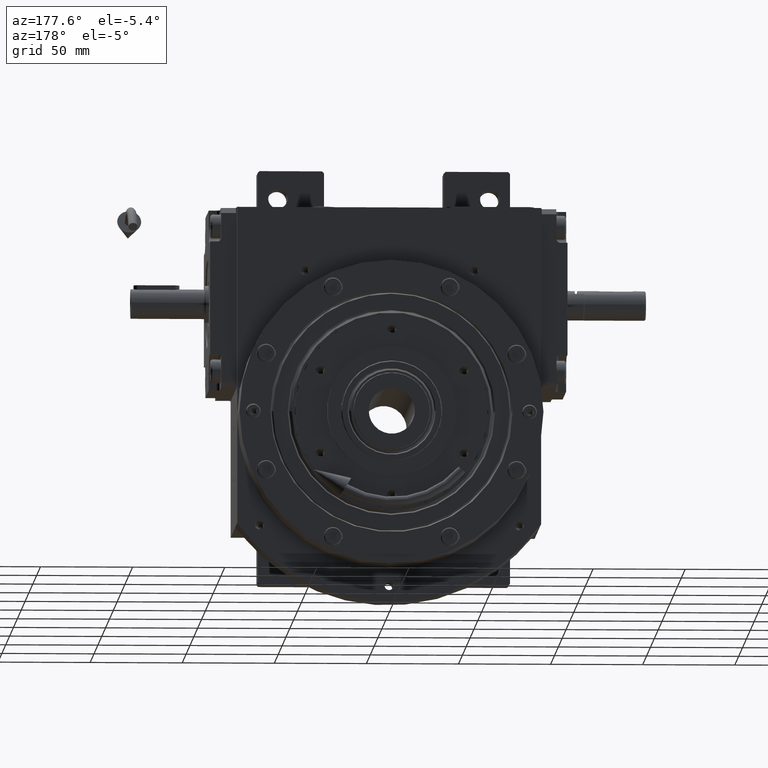
[diagram: clean part render]
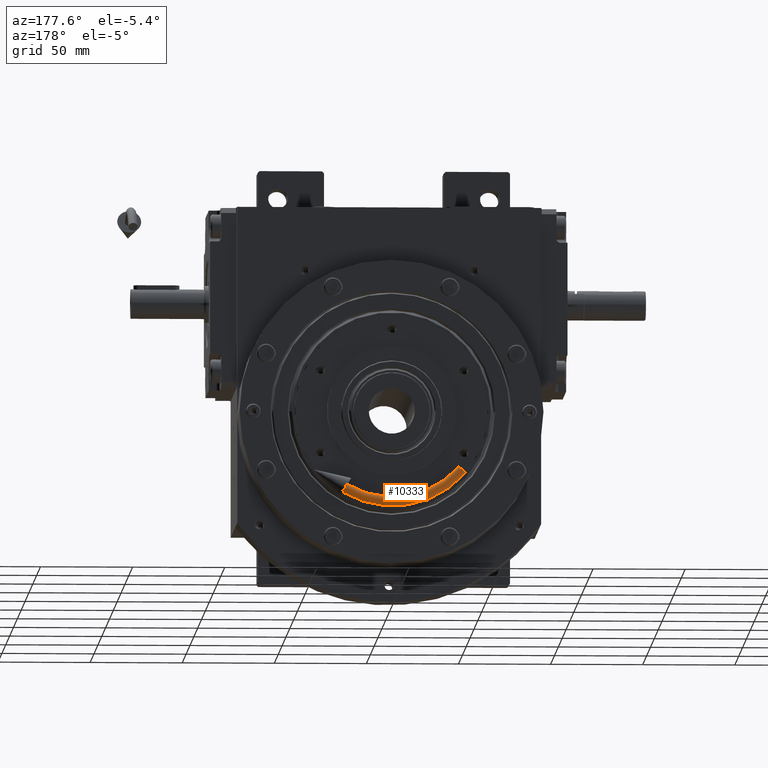
[diagram: same view with one face highlighted and labeled with its STEP entity id]
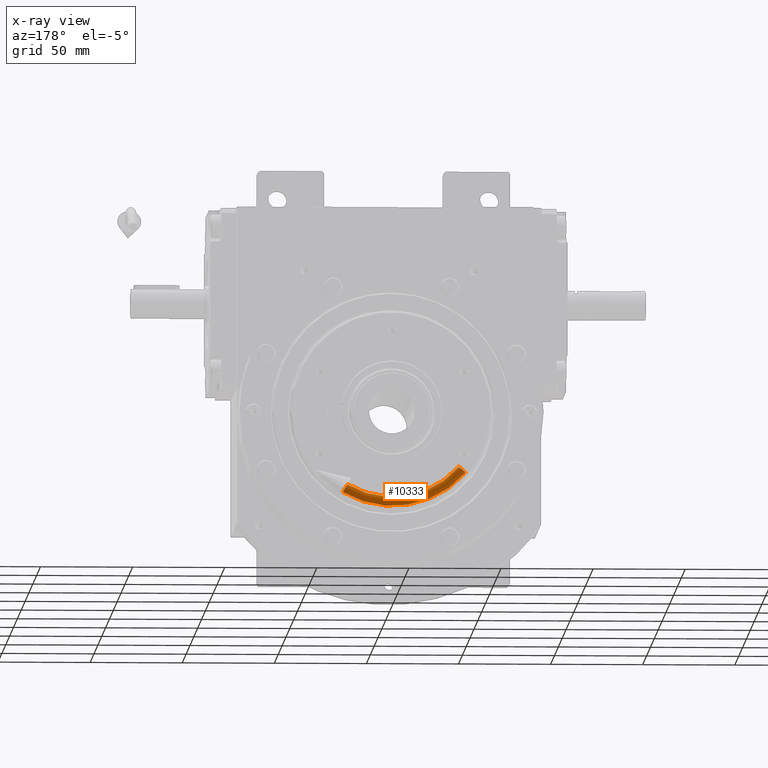
[diagram: x-ray of the same camera — body ghosted, the highlighted face saturated]
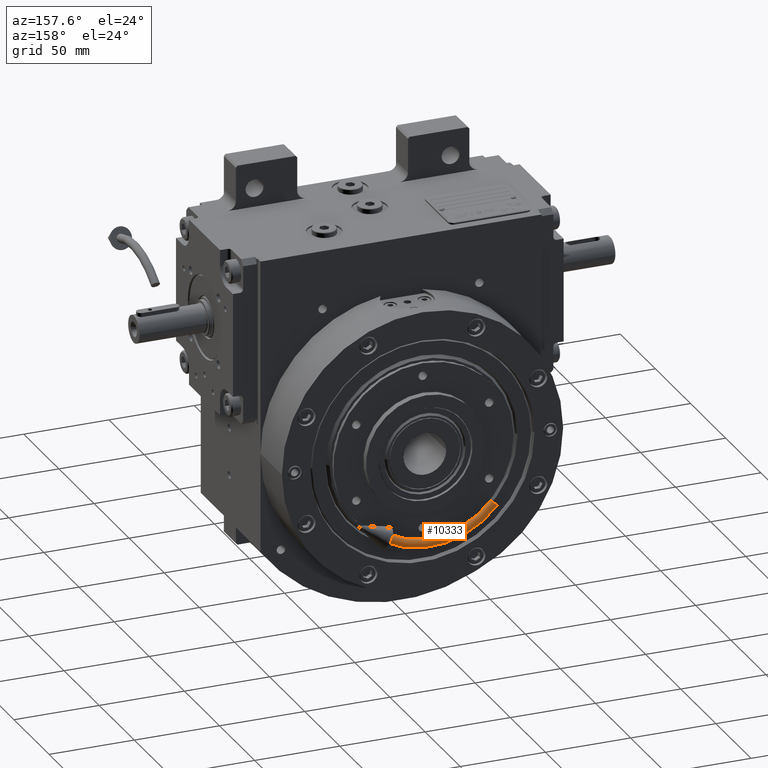
[diagram: same view with one face highlighted and labeled with its STEP entity id]
A machine part, auxiliary view. The second image highlights one B-rep face of the part: STEP entity #10333.
The next image is the same camera in x-ray: the body ghosted, the highlighted face saturated — about 0% of this face is hidden behind the body in this view.
A second angle (auxiliary view) of the same face is appended — the face is thin or edge-on in the first view.
In plain terms, the highlighted toroidal blend (fillet) surface has major radius 50 mm and minor (blend) radius 2.5 mm.
Its self-contained STEP definition (entity closure, byte-faithful):
#598 = ORIENTED_EDGE ( 'NONE', *, *, #51169, .F. ) ;
#4055 = CARTESIAN_POINT ( 'NONE',  ( -49.99999999999962341, 0.000000000000000000, -1.387778780781445676E-14 ) ) ;
#7012 = DIRECTION ( 'NONE',  ( 1.000000000000000000, -2.041375527991182042E-16, 0.000000000000000000 ) ) ;
#8788 = CARTESIAN_POINT ( 'NONE',  ( -52.49999999998293276, -3.160566285864233684E-15, -1.373900992973723831E-14 ) ) ;
#9257 = VERTEX_POINT ( 'NONE', #49741 ) ;
#10333 = ADVANCED_FACE ( 'NONE', ( #25946 ), #40447, .T. ) ;
#16374 = DIRECTION ( 'NONE',  ( 1.000000000000000000, -2.041375527991182042E-16, -5.551115123125820913E-17 ) ) ;
#16684 = CIRCLE ( 'NONE', #56341, 52.49999999998313882 ) ;
#17950 = DIRECTION ( 'NONE',  ( 0.9848077530122086864, -2.010362446775138044E-16, 0.1736481776669274446 ) ) ;
#18664 = EDGE_CURVE ( 'NONE', #9257, #48750, #55753, .T. ) ;
#25604 = EDGE_CURVE ( 'NONE', #9257, #44816, #43199, .T. ) ;
#25946 = FACE_OUTER_BOUND ( 'NONE', #59594, .T. ) ;
#27475 = CIRCLE ( 'NONE', #37686, 2.499999999983113064 ) ;
#30991 = DIRECTION ( 'NONE',  ( 1.000000000000000000, 0.000000000000000000, -5.551115123125813517E-17 ) ) ;
#31770 = CARTESIAN_POINT ( 'NONE',  ( -47.50000000001650591, 0.000000000000000000, -1.401656568589166416E-14 ) ) ;
#32544 = AXIS2_PLACEMENT_3D ( 'NONE', #49003, #47597, #16374 ) ;
#37686 = AXIS2_PLACEMENT_3D ( 'NONE', #4055, #51945, #30991 ) ;
#40447 = TOROIDAL_SURFACE ( 'NONE', #32544, 50.00000000000000000, 2.499999999983133048 ) ;
#43199 = CIRCLE ( 'NONE', #61328, 2.499999999983113064 ) ;
#44269 = DIRECTION ( 'NONE',  ( -2.041375527991182042E-16, -1.000000000000000000, 1.232595164407830946E-32 ) ) ;
#44501 = VERTEX_POINT ( 'NONE', #8788 ) ;
#44816 = VERTEX_POINT ( 'NONE', #49905 ) ;
#44891 = CARTESIAN_POINT ( 'NONE',  ( -8.682408883346308670, -1.387778780781445676E-14, 49.24038765061003176 ) ) ;
#45412 = DIRECTION ( 'NONE',  ( 1.000000000000000000, -2.041375527991181795E-16, 0.000000000000000000 ) ) ;
#47597 = DIRECTION ( 'NONE',  ( -2.041375527991182042E-16, -1.000000000000000000, 1.232595164407830946E-32 ) ) ;
#48750 = VERTEX_POINT ( 'NONE', #31770 ) ;
#49003 = CARTESIAN_POINT ( 'NONE',  ( 0.000000000000000000, -1.387778780781445676E-14, 0.000000000000000000 ) ) ;
#49741 = CARTESIAN_POINT ( 'NONE',  ( -8.248288439181953535, -1.188784069127382043E-14, 46.77836826809632953 ) ) ;
#49905 = CARTESIAN_POINT ( 'NONE',  ( -9.116529327510729530, -1.201676182087502474E-14, 51.70240703312413189 ) ) ;
#50745 = CARTESIAN_POINT ( 'NONE',  ( 0.000000000000000000, -1.387778780781445676E-14, 0.000000000000000000 ) ) ;
#51169 = EDGE_CURVE ( 'NONE', #44816, #44501, #16684, .T. ) ;
#51945 = DIRECTION ( 'NONE',  ( 5.551115123125820913E-17, 0.000000000000000000, 1.000000000000000000 ) ) ;
#55753 = CIRCLE ( 'NONE', #64792, 47.50000000001686828 ) ;
#56341 = AXIS2_PLACEMENT_3D ( 'NONE', #50745, #56778, #45412 ) ;
#56778 = DIRECTION ( 'NONE',  ( -2.041375527991182042E-16, -1.000000000000000000, 1.232595164407830946E-32 ) ) ;
#57289 = ORIENTED_EDGE ( 'NONE', *, *, #69762, .T. ) ;
#59594 = EDGE_LOOP ( 'NONE', ( #598, #69767, #69247, #57289 ) ) ;
#61328 = AXIS2_PLACEMENT_3D ( 'NONE', #44891, #17950, #67225 ) ;
#64792 = AXIS2_PLACEMENT_3D ( 'NONE', #67529, #44269, #7012 ) ;
#67225 = DIRECTION ( 'NONE',  ( 0.1736481776669271393, 1.686894387621676009E-16, -0.9848077530122086864 ) ) ;
#67529 = CARTESIAN_POINT ( 'NONE',  ( 6.249910015488181172E-32, -1.357162610802968412E-14, -3.773734306815928641E-48 ) ) ;
#69247 = ORIENTED_EDGE ( 'NONE', *, *, #18664, .T. ) ;
#69762 = EDGE_CURVE ( 'NONE', #48750, #44501, #27475, .T. ) ;
#69767 = ORIENTED_EDGE ( 'NONE', *, *, #25604, .F. ) ;